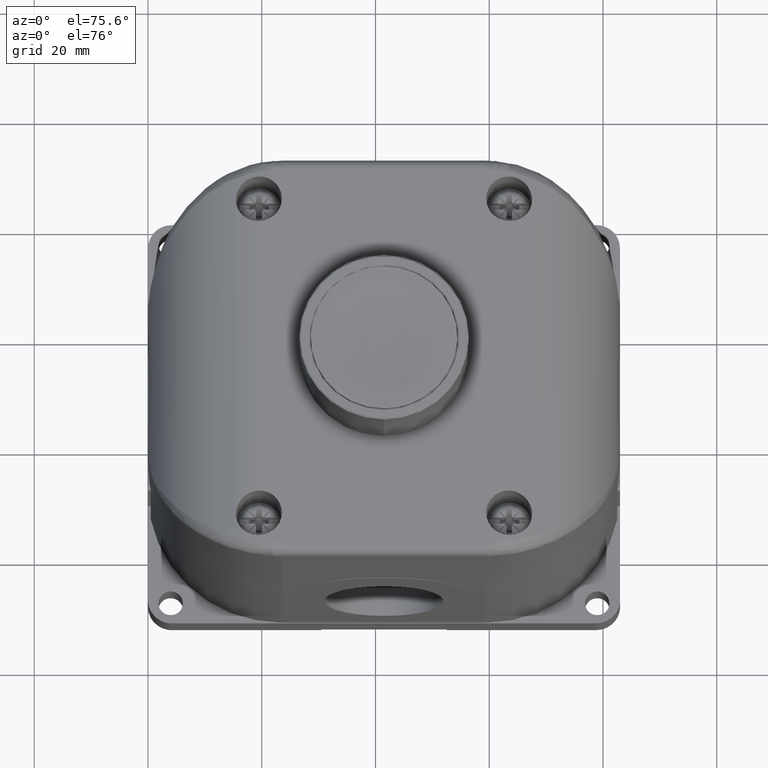
[diagram: clean part render]
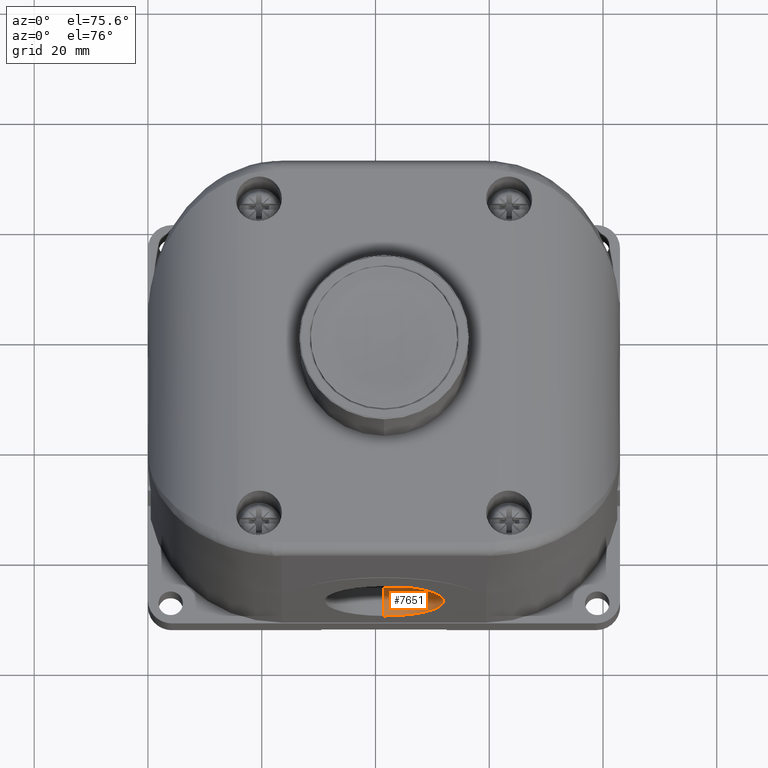
[diagram: same view with one face highlighted and labeled with its STEP entity id]
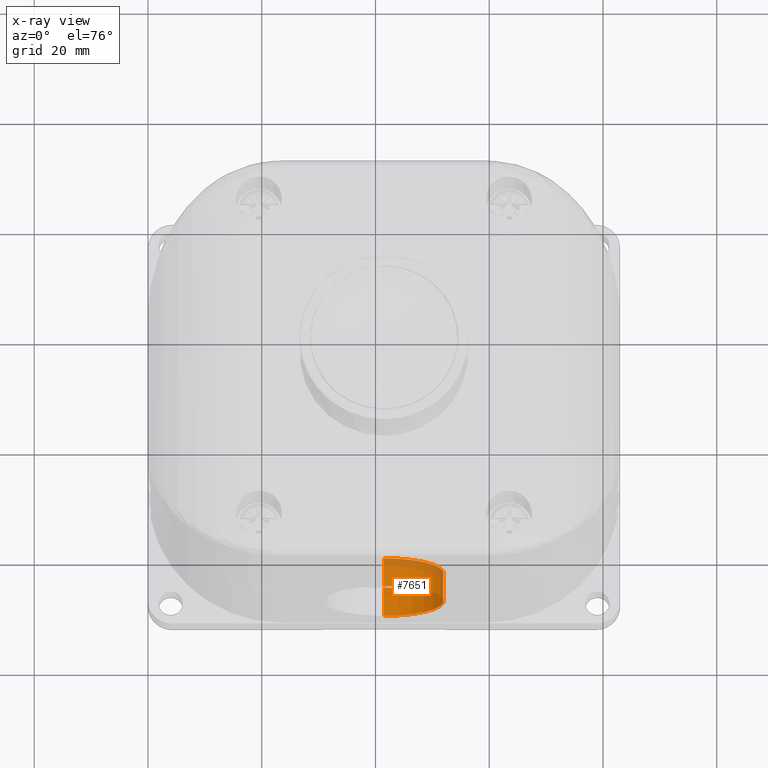
[diagram: x-ray of the same camera — body ghosted, the highlighted face saturated]
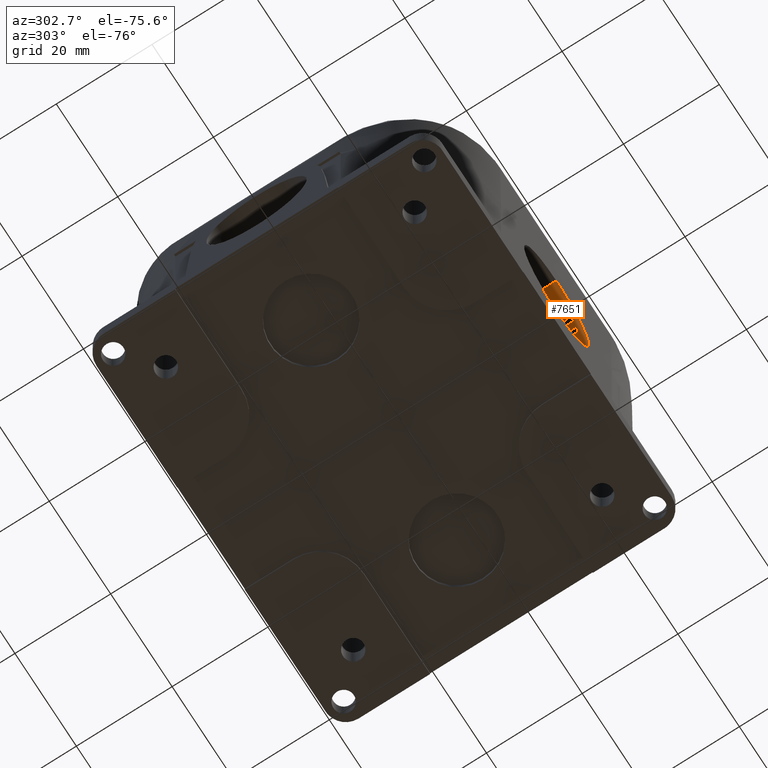
[diagram: same view with one face highlighted and labeled with its STEP entity id]
A machine part, auxiliary view. The second image highlights one B-rep face of the part: STEP entity #7651.
The next image is the same camera in x-ray: the body ghosted, the highlighted face saturated — about 16% of this face is hidden behind the body in this view.
A second angle (auxiliary view) of the same face is appended — the face is thin or edge-on in the first view.
In plain terms, the highlighted cylindrical surface (partial cylindrical patch) has radius 10.5 mm, axis along (-0, 1, -0).
Its self-contained STEP definition (entity closure, byte-faithful):
#579 = VERTEX_POINT ( 'NONE', #2389 ) ;
#922 = CIRCLE ( 'NONE', #4709, 0.4133858267716555845 ) ;
#2054 = DIRECTION ( 'NONE',  ( -0.000000000000000000, 1.000000000000000000, -0.000000000000000000 ) ) ;
#2339 = CARTESIAN_POINT ( 'NONE',  ( 1.633858267716535195, -2.641621696622722837, 1.200787401574805013 ) ) ;
#2389 = CARTESIAN_POINT ( 'NONE',  ( 1.633858267716535195, -2.840440594260518647, 1.200787401574805013 ) ) ;
#2745 = AXIS2_PLACEMENT_3D ( 'NONE', #7675, #11239, #7435 ) ;
#3854 = FACE_OUTER_BOUND ( 'NONE', #13902, .T. ) ;
#4644 = DIRECTION ( 'NONE',  ( 0.000000000000000000, 0.000000000000000000, 1.000000000000000000 ) ) ;
#4709 = AXIS2_PLACEMENT_3D ( 'NONE', #20982, #17393, #4644 ) ;
#5088 = CARTESIAN_POINT ( 'NONE',  ( 1.633858267716535195, -2.840440594260518647, 0.3740157480314939553 ) ) ;
#5637 = CARTESIAN_POINT ( 'NONE',  ( 1.633858267716535195, -2.854529808798376589, 1.200787401574805013 ) ) ;
#5737 = DIRECTION ( 'NONE',  ( -0.000000000000000000, 1.000000000000000000, -0.000000000000000000 ) ) ;
#5990 = DIRECTION ( 'NONE',  ( 0.000000000000000000, 0.000000000000000000, 1.000000000000000000 ) ) ;
#7435 = DIRECTION ( 'NONE',  ( 0.000000000000000000, 0.000000000000000000, 1.000000000000000000 ) ) ;
#7600 = EDGE_CURVE ( 'NONE', #21439, #7696, #14539, .T. ) ;
#7651 = ADVANCED_FACE ( 'NONE', ( #3854 ), #22331, .F. ) ;
#7675 = CARTESIAN_POINT ( 'NONE',  ( 1.633858267716535195, -2.641621696622722837, 0.7874015748031495399 ) ) ;
#7695 = EDGE_CURVE ( 'NONE', #579, #13921, #922, .T. ) ;
#7696 = VERTEX_POINT ( 'NONE', #15266 ) ;
#8855 = LINE ( 'NONE', #5637, #21710 ) ;
#9417 = CARTESIAN_POINT ( 'NONE',  ( 1.633858267716535195, -2.854529808798376589, 0.3740157480314939553 ) ) ;
#10748 = ORIENTED_EDGE ( 'NONE', *, *, #7600, .T. ) ;
#11239 = DIRECTION ( 'NONE',  ( 0.000000000000000000, 1.000000000000000000, 0.000000000000000000 ) ) ;
#12693 = EDGE_CURVE ( 'NONE', #579, #21439, #8855, .T. ) ;
#13902 = EDGE_LOOP ( 'NONE', ( #14639, #22610, #16408, #10748 ) ) ;
#13921 = VERTEX_POINT ( 'NONE', #5088 ) ;
#14539 = CIRCLE ( 'NONE', #2745, 0.4133858267716555845 ) ;
#14639 = ORIENTED_EDGE ( 'NONE', *, *, #19791, .F. ) ;
#14714 = VECTOR ( 'NONE', #5737, 39.37007874015748143 ) ;
#15266 = CARTESIAN_POINT ( 'NONE',  ( 1.633858267716535195, -2.641621696622722837, 0.3740157480314939553 ) ) ;
#16130 = AXIS2_PLACEMENT_3D ( 'NONE', #18379, #2054, #5990 ) ;
#16408 = ORIENTED_EDGE ( 'NONE', *, *, #12693, .T. ) ;
#17393 = DIRECTION ( 'NONE',  ( -0.000000000000000000, 1.000000000000000000, 0.000000000000000000 ) ) ;
#18379 = CARTESIAN_POINT ( 'NONE',  ( 1.633858267716535195, -2.854529808798376589, 0.7874015748031495399 ) ) ;
#19791 = EDGE_CURVE ( 'NONE', #13921, #7696, #20380, .T. ) ;
#20380 = LINE ( 'NONE', #9417, #14714 ) ;
#20982 = CARTESIAN_POINT ( 'NONE',  ( 1.633858267716535195, -2.840440594260518647, 0.7874015748031495399 ) ) ;
#21439 = VERTEX_POINT ( 'NONE', #2339 ) ;
#21609 = DIRECTION ( 'NONE',  ( -0.000000000000000000, 1.000000000000000000, -0.000000000000000000 ) ) ;
#21710 = VECTOR ( 'NONE', #21609, 39.37007874015748143 ) ;
#22331 = CYLINDRICAL_SURFACE ( 'NONE', #16130, 0.4133858267716555845 ) ;
#22610 = ORIENTED_EDGE ( 'NONE', *, *, #7695, .F. ) ;